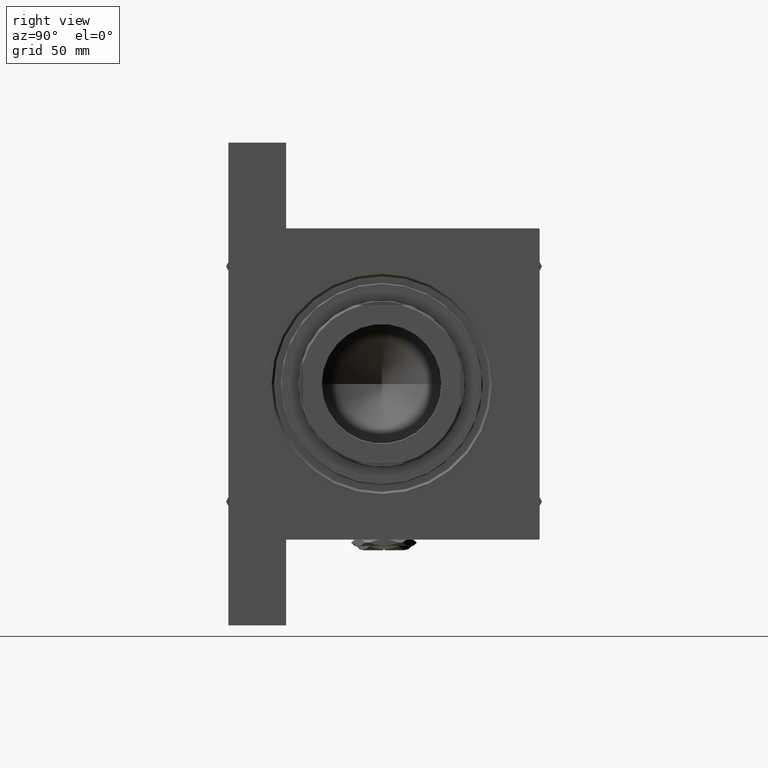
[diagram: clean part render]
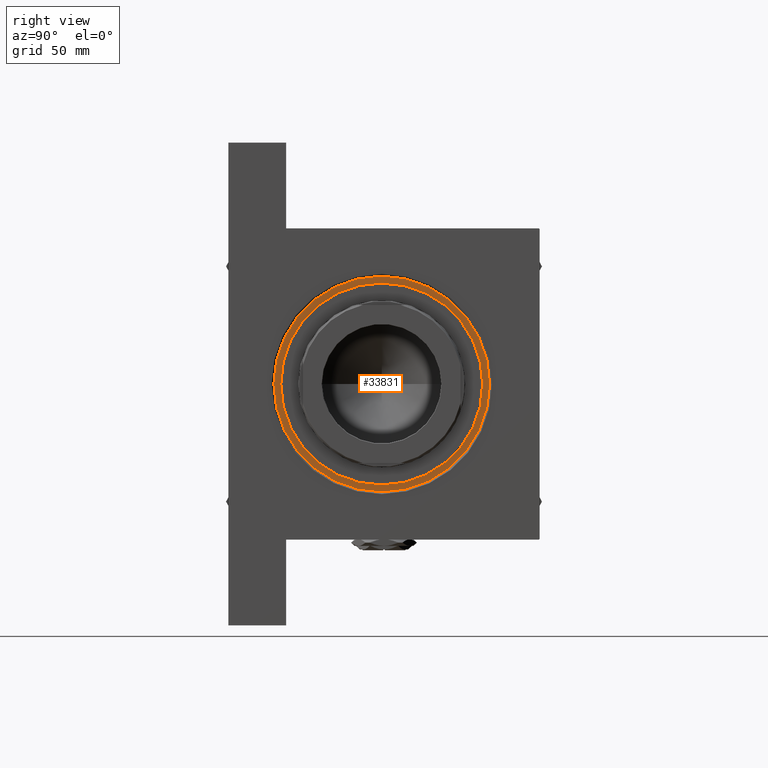
[diagram: same view with one face highlighted and labeled with its STEP entity id]
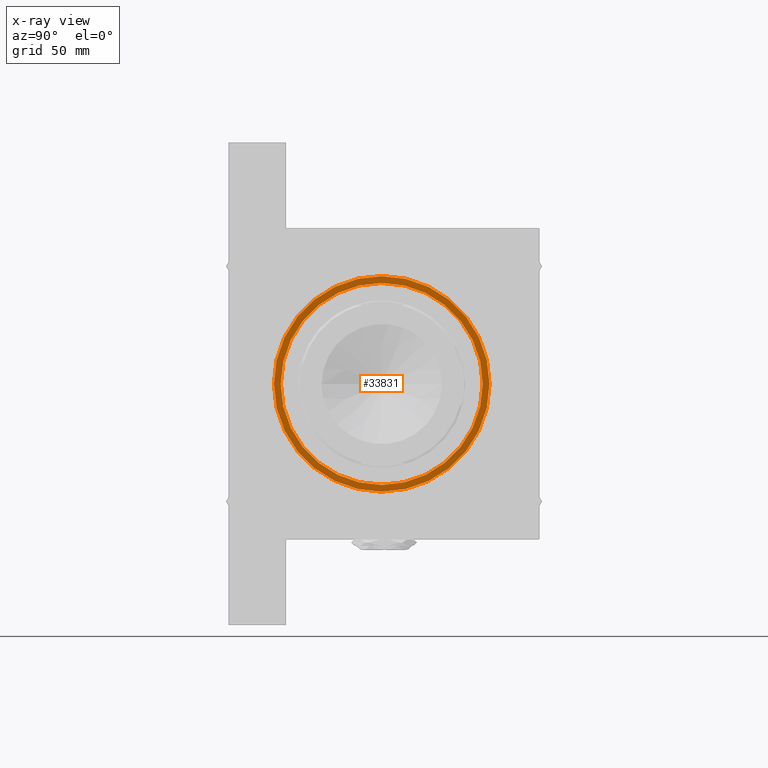
[diagram: x-ray of the same camera — body ghosted, the highlighted face saturated]
A machine part, right view. The second image highlights one B-rep face of the part: STEP entity #33831.
The next image is the same camera in x-ray: the body ghosted, the highlighted face saturated — about 0% of this face is hidden behind the body in this view.
In plain terms, the highlighted planar face has unit normal (1, 0, 0).
Its self-contained STEP definition (entity closure, byte-faithful):
#135 = ORIENTED_EDGE ( 'NONE', *, *, #35585, .T. ) ;
#391 = DIRECTION ( 'NONE',  ( 0.000000000000000000, 0.000000000000000000, 1.000000000000000000 ) ) ;
#1448 = EDGE_LOOP ( 'NONE', ( #135, #19307 ) ) ;
#4770 = CARTESIAN_POINT ( 'NONE',  ( 0.000000000000000000, 0.000000000000000000, 28.69999999999999929 ) ) ;
#5840 = CIRCLE ( 'NONE', #28497, 71.00000000000001421 ) ;
#6103 = CIRCLE ( 'NONE', #46640, 71.00000000000001421 ) ;
#6608 = CARTESIAN_POINT ( 'NONE',  ( 66.50000000000000000, 8.143901214329899974E-15, 28.69999999999999929 ) ) ;
#6755 = CARTESIAN_POINT ( 'NONE',  ( 0.000000000000000000, 0.000000000000000000, 28.69999999999999929 ) ) ;
#7291 = AXIS2_PLACEMENT_3D ( 'NONE', #18660, #15107, #34901 ) ;
#7901 = CARTESIAN_POINT ( 'NONE',  ( -66.50000000000000000, 0.000000000000000000, 28.69999999999999929 ) ) ;
#8728 = DIRECTION ( 'NONE',  ( 1.000000000000000000, 0.000000000000000000, -0.000000000000000000 ) ) ;
#10077 = AXIS2_PLACEMENT_3D ( 'NONE', #6755, #22224, #10801 ) ;
#10801 = DIRECTION ( 'NONE',  ( 1.000000000000000000, 0.000000000000000000, 0.000000000000000000 ) ) ;
#11077 = AXIS2_PLACEMENT_3D ( 'NONE', #32996, #391, #8728 ) ;
#11730 = CIRCLE ( 'NONE', #10077, 66.50000000000000000 ) ;
#12034 = FACE_OUTER_BOUND ( 'NONE', #1448, .T. ) ;
#12288 = FACE_BOUND ( 'NONE', #29842, .T. ) ;
#14731 = DIRECTION ( 'NONE',  ( 0.000000000000000000, 0.000000000000000000, 1.000000000000000000 ) ) ;
#15107 = DIRECTION ( 'NONE',  ( 0.000000000000000000, 0.000000000000000000, 1.000000000000000000 ) ) ;
#15418 = ORIENTED_EDGE ( 'NONE', *, *, #29812, .F. ) ;
#16818 = PLANE ( 'NONE',  #11077 ) ;
#18660 = CARTESIAN_POINT ( 'NONE',  ( 0.000000000000000000, 0.000000000000000000, 28.69999999999999929 ) ) ;
#19003 = EDGE_CURVE ( 'NONE', #44775, #40889, #5840, .T. ) ;
#19307 = ORIENTED_EDGE ( 'NONE', *, *, #19003, .T. ) ;
#19988 = DIRECTION ( 'NONE',  ( 1.000000000000000000, 0.000000000000000000, 0.000000000000000000 ) ) ;
#20931 = CARTESIAN_POINT ( 'NONE',  ( 71.00000000000001421, 8.694992273946208141E-15, 28.69999999999999929 ) ) ;
#22224 = DIRECTION ( 'NONE',  ( 0.000000000000000000, 0.000000000000000000, 1.000000000000000000 ) ) ;
#22603 = DIRECTION ( 'NONE',  ( 1.000000000000000000, 0.000000000000000000, 0.000000000000000000 ) ) ;
#23625 = CARTESIAN_POINT ( 'NONE',  ( -71.00000000000001421, 0.000000000000000000, 28.69999999999999929 ) ) ;
#25895 = CARTESIAN_POINT ( 'NONE',  ( 0.000000000000000000, 0.000000000000000000, 28.69999999999999929 ) ) ;
#28497 = AXIS2_PLACEMENT_3D ( 'NONE', #4770, #39493, #19988 ) ;
#29812 = EDGE_CURVE ( 'NONE', #43368, #39125, #11730, .T. ) ;
#29842 = EDGE_LOOP ( 'NONE', ( #15418, #50183 ) ) ;
#32996 = CARTESIAN_POINT ( 'NONE',  ( 0.000000000000000000, 0.000000000000000000, 28.69999999999999929 ) ) ;
#33831 = ADVANCED_FACE ( 'NONE', ( #12288, #12034 ), #16818, .T. ) ;
#34901 = DIRECTION ( 'NONE',  ( 1.000000000000000000, 0.000000000000000000, 0.000000000000000000 ) ) ;
#35585 = EDGE_CURVE ( 'NONE', #40889, #44775, #6103, .T. ) ;
#39125 = VERTEX_POINT ( 'NONE', #6608 ) ;
#39493 = DIRECTION ( 'NONE',  ( 0.000000000000000000, 0.000000000000000000, 1.000000000000000000 ) ) ;
#40889 = VERTEX_POINT ( 'NONE', #23625 ) ;
#43368 = VERTEX_POINT ( 'NONE', #7901 ) ;
#43730 = CIRCLE ( 'NONE', #7291, 66.50000000000000000 ) ;
#44775 = VERTEX_POINT ( 'NONE', #20931 ) ;
#46640 = AXIS2_PLACEMENT_3D ( 'NONE', #25895, #14731, #22603 ) ;
#48782 = EDGE_CURVE ( 'NONE', #39125, #43368, #43730, .T. ) ;
#50183 = ORIENTED_EDGE ( 'NONE', *, *, #48782, .F. ) ;